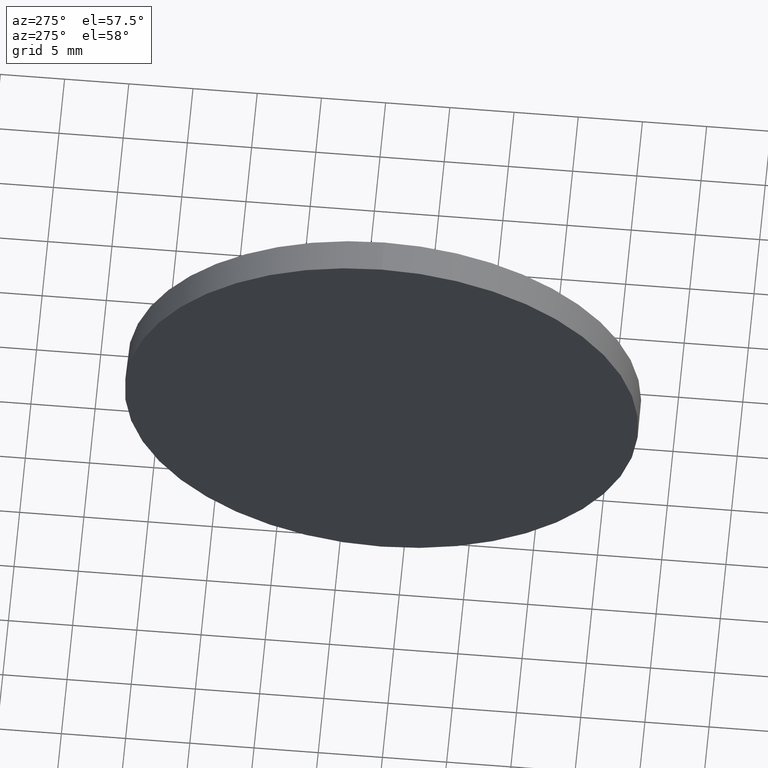
[diagram: clean part render]
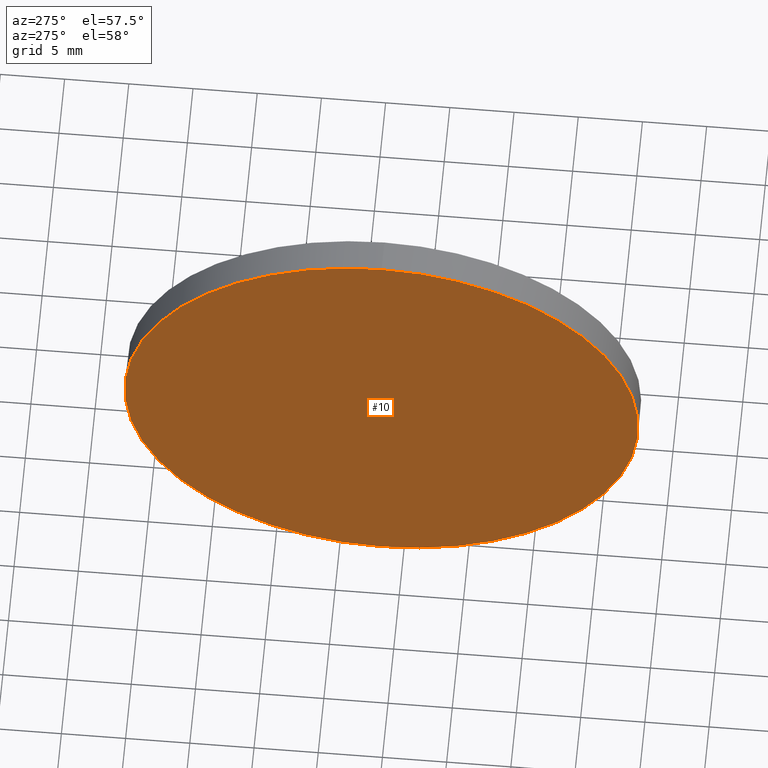
[diagram: same view with one face highlighted and labeled with its STEP entity id]
A machine part, auxiliary view. The second image highlights one B-rep face of the part: STEP entity #10.
In plain terms, the highlighted planar face has unit normal (1, 0, 0).
Its self-contained STEP definition (entity closure, byte-faithful):
#10 = ADVANCED_FACE ( 'NONE', ( #82 ), #129, .F. ) ;
#11 = CARTESIAN_POINT ( 'NONE',  ( 398.7641761276700000, 121.7145890969490300, 0.0000000000000000000 ) ) ;
#13 = CARTESIAN_POINT ( 'NONE',  ( 398.7641761276700000, 121.7145890969490300, 0.0000000000000000000 ) ) ;
#14 = DIRECTION ( 'NONE',  ( 0.0000000000000000000, 0.0000000000000000000, 1.000000000000000000 ) ) ;
#30 = CARTESIAN_POINT ( 'NONE',  ( 398.7641761276700000, 121.7145890969490300, -20.00000000000000400 ) ) ;
#31 = CARTESIAN_POINT ( 'NONE',  ( 398.7641761276700000, 121.7145890969490300, 0.0000000000000000000 ) ) ;
#35 = CARTESIAN_POINT ( 'NONE',  ( 398.7641761276700000, 121.7145890969490300, 20.00000000000000400 ) ) ;
#38 = EDGE_LOOP ( 'NONE', ( #123, #177 ) ) ;
#47 = CIRCLE ( 'NONE', #96, 20.00000000000000400 ) ;
#58 = EDGE_CURVE ( 'NONE', #66, #101, #47, .T. ) ;
#66 = VERTEX_POINT ( 'NONE', #30 ) ;
#73 = DIRECTION ( 'NONE',  ( 1.000000000000000000, 0.0000000000000000000, 0.0000000000000000000 ) ) ;
#78 = DIRECTION ( 'NONE',  ( -1.000000000000000000, -0.0000000000000000000, -0.0000000000000000000 ) ) ;
#82 = FACE_OUTER_BOUND ( 'NONE', #38, .T. ) ;
#84 = DIRECTION ( 'NONE',  ( -1.000000000000000000, -0.0000000000000000000, -0.0000000000000000000 ) ) ;
#88 = DIRECTION ( 'NONE',  ( 0.0000000000000000000, 0.0000000000000000000, 1.000000000000000000 ) ) ;
#96 = AXIS2_PLACEMENT_3D ( 'NONE', #13, #84, #14 ) ;
#101 = VERTEX_POINT ( 'NONE', #35 ) ;
#120 = DIRECTION ( 'NONE',  ( 0.0000000000000000000, 0.0000000000000000000, -1.000000000000000000 ) ) ;
#123 = ORIENTED_EDGE ( 'NONE', *, *, #179, .T. ) ;
#129 = PLANE ( 'NONE',  #152 ) ;
#152 = AXIS2_PLACEMENT_3D ( 'NONE', #11, #73, #120 ) ;
#154 = CIRCLE ( 'NONE', #159, 20.00000000000000400 ) ;
#159 = AXIS2_PLACEMENT_3D ( 'NONE', #31, #78, #88 ) ;
#177 = ORIENTED_EDGE ( 'NONE', *, *, #58, .T. ) ;
#179 = EDGE_CURVE ( 'NONE', #101, #66, #154, .T. ) ;